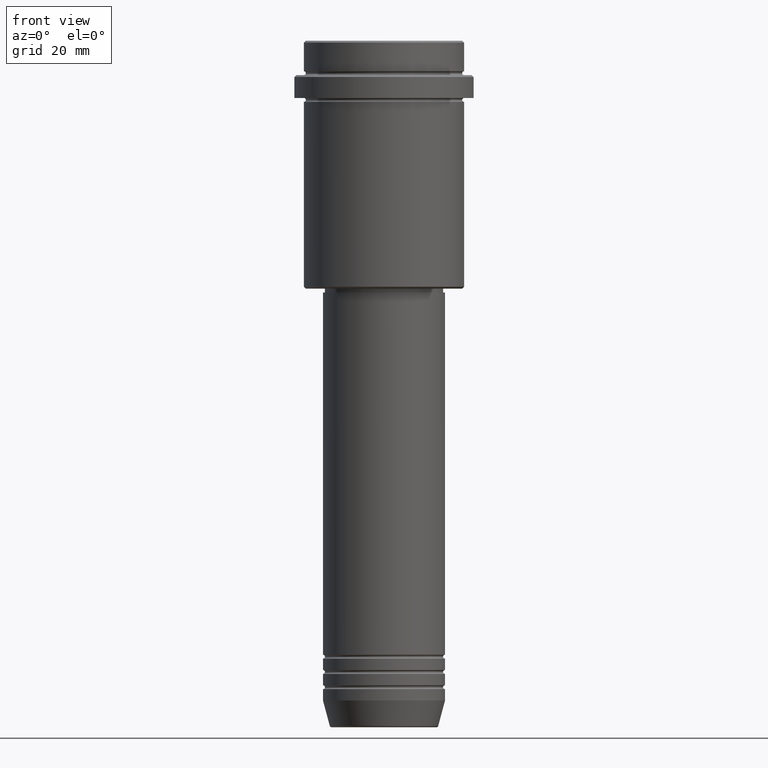
[diagram: clean part render]
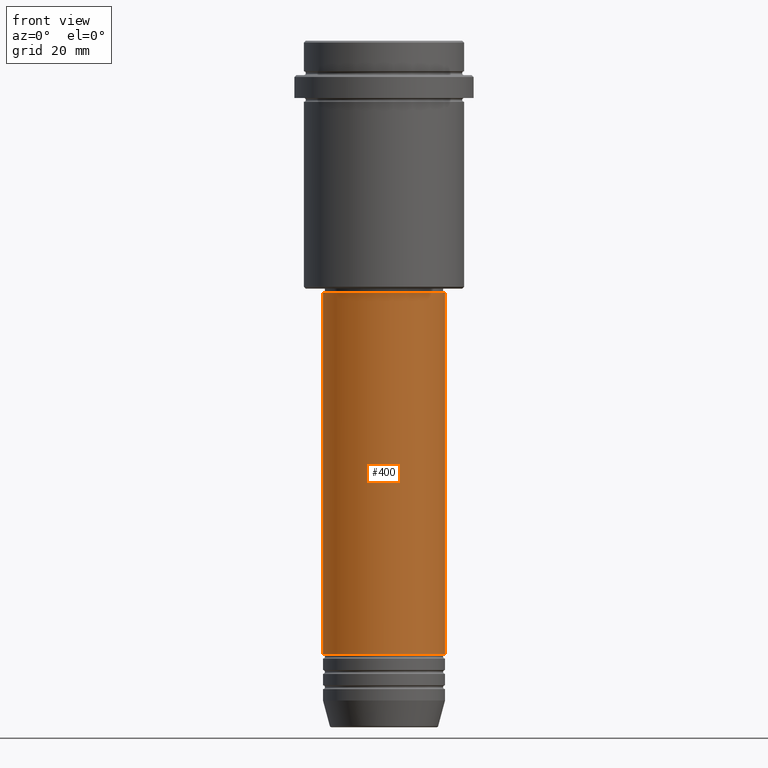
[diagram: same view with one face highlighted and labeled with its STEP entity id]
A machine part, front view. The second image highlights one B-rep face of the part: STEP entity #400.
In plain terms, the highlighted cylindrical surface (partial cylindrical patch) has radius 16 mm, axis along (-0, -0, 1).
Its self-contained STEP definition (entity closure, byte-faithful):
#33 = LINE ( 'NONE', #1215, #437 ) ;
#56 = VERTEX_POINT ( 'NONE', #1403 ) ;
#72 = ORIENTED_EDGE ( 'NONE', *, *, #1259, .F. ) ;
#171 = CARTESIAN_POINT ( 'NONE',  ( 0.000000000000000000, 0.000000000000000000, -160.9999999999999147 ) ) ;
#241 = VERTEX_POINT ( 'NONE', #1318 ) ;
#319 = CARTESIAN_POINT ( 'NONE',  ( 16.00000000000000000, 0.000000000000000000, -160.9999999999999147 ) ) ;
#391 = CARTESIAN_POINT ( 'NONE',  ( -16.00000000000000000, 1.959434878635765131E-15, 0.000000000000000000 ) ) ;
#400 = ADVANCED_FACE ( 'NONE', ( #1262 ), #479, .T. ) ;
#435 = CARTESIAN_POINT ( 'NONE',  ( 0.000000000000000000, 0.000000000000000000, -66.00000000000000000 ) ) ;
#437 = VECTOR ( 'NONE', #545, 1000.000000000000000 ) ;
#459 = CIRCLE ( 'NONE', #596, 16.00000000000000000 ) ;
#470 = DIRECTION ( 'NONE',  ( 1.000000000000000000, 0.000000000000000000, 0.000000000000000000 ) ) ;
#479 = CYLINDRICAL_SURFACE ( 'NONE', #778, 16.00000000000000000 ) ;
#514 = VERTEX_POINT ( 'NONE', #319 ) ;
#545 = DIRECTION ( 'NONE',  ( -0.000000000000000000, -0.000000000000000000, 1.000000000000000000 ) ) ;
#596 = AXIS2_PLACEMENT_3D ( 'NONE', #171, #916, #470 ) ;
#624 = DIRECTION ( 'NONE',  ( 1.000000000000000000, 0.000000000000000000, 0.000000000000000000 ) ) ;
#626 = CARTESIAN_POINT ( 'NONE',  ( 0.000000000000000000, 0.000000000000000000, 0.000000000000000000 ) ) ;
#680 = ORIENTED_EDGE ( 'NONE', *, *, #1125, .T. ) ;
#706 = DIRECTION ( 'NONE',  ( 1.000000000000000000, 0.000000000000000000, 0.000000000000000000 ) ) ;
#724 = ORIENTED_EDGE ( 'NONE', *, *, #882, .F. ) ;
#733 = DIRECTION ( 'NONE',  ( -0.000000000000000000, -0.000000000000000000, 1.000000000000000000 ) ) ;
#737 = AXIS2_PLACEMENT_3D ( 'NONE', #435, #733, #624 ) ;
#778 = AXIS2_PLACEMENT_3D ( 'NONE', #626, #815, #706 ) ;
#815 = DIRECTION ( 'NONE',  ( -0.000000000000000000, -0.000000000000000000, 1.000000000000000000 ) ) ;
#882 = EDGE_CURVE ( 'NONE', #1005, #241, #1343, .T. ) ;
#909 = EDGE_LOOP ( 'NONE', ( #72, #1247, #680, #724 ) ) ;
#916 = DIRECTION ( 'NONE',  ( -0.000000000000000000, -0.000000000000000000, 1.000000000000000000 ) ) ;
#936 = DIRECTION ( 'NONE',  ( -0.000000000000000000, -0.000000000000000000, 1.000000000000000000 ) ) ;
#967 = CARTESIAN_POINT ( 'NONE',  ( -16.00000000000000355, 1.959434878635765526E-15, -66.00000000000000000 ) ) ;
#1005 = VERTEX_POINT ( 'NONE', #967 ) ;
#1038 = LINE ( 'NONE', #391, #1213 ) ;
#1125 = EDGE_CURVE ( 'NONE', #514, #241, #33, .T. ) ;
#1213 = VECTOR ( 'NONE', #936, 1000.000000000000000 ) ;
#1215 = CARTESIAN_POINT ( 'NONE',  ( 16.00000000000000000, 0.000000000000000000, 0.000000000000000000 ) ) ;
#1247 = ORIENTED_EDGE ( 'NONE', *, *, #1269, .T. ) ;
#1259 = EDGE_CURVE ( 'NONE', #56, #1005, #1038, .T. ) ;
#1262 = FACE_OUTER_BOUND ( 'NONE', #909, .T. ) ;
#1269 = EDGE_CURVE ( 'NONE', #56, #514, #459, .T. ) ;
#1318 = CARTESIAN_POINT ( 'NONE',  ( 16.00000000000000355, 0.000000000000000000, -66.00000000000000000 ) ) ;
#1343 = CIRCLE ( 'NONE', #737, 16.00000000000000355 ) ;
#1403 = CARTESIAN_POINT ( 'NONE',  ( -16.00000000000000000, 1.959434878635765131E-15, -160.9999999999999147 ) ) ;